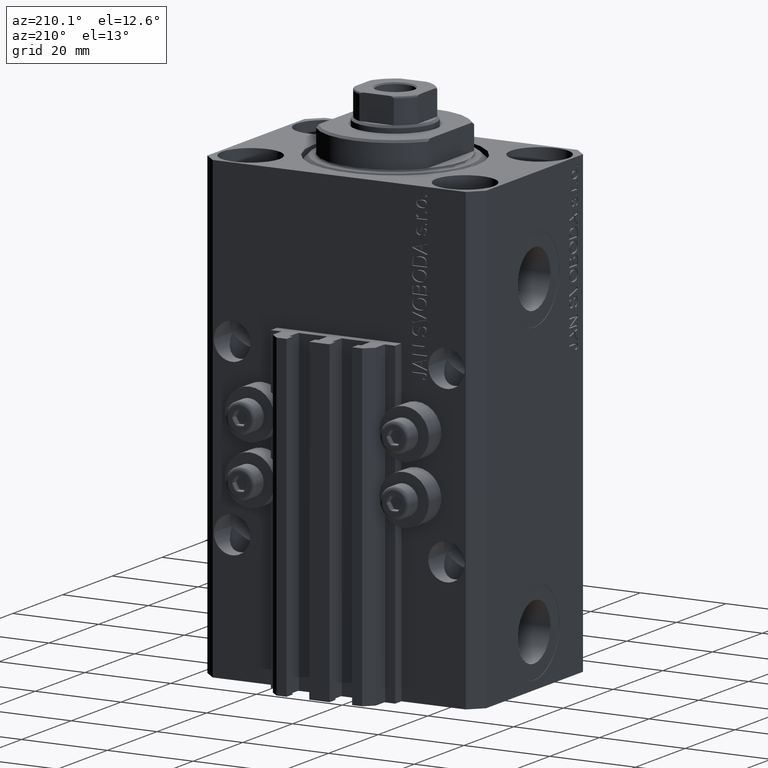
[diagram: clean part render]
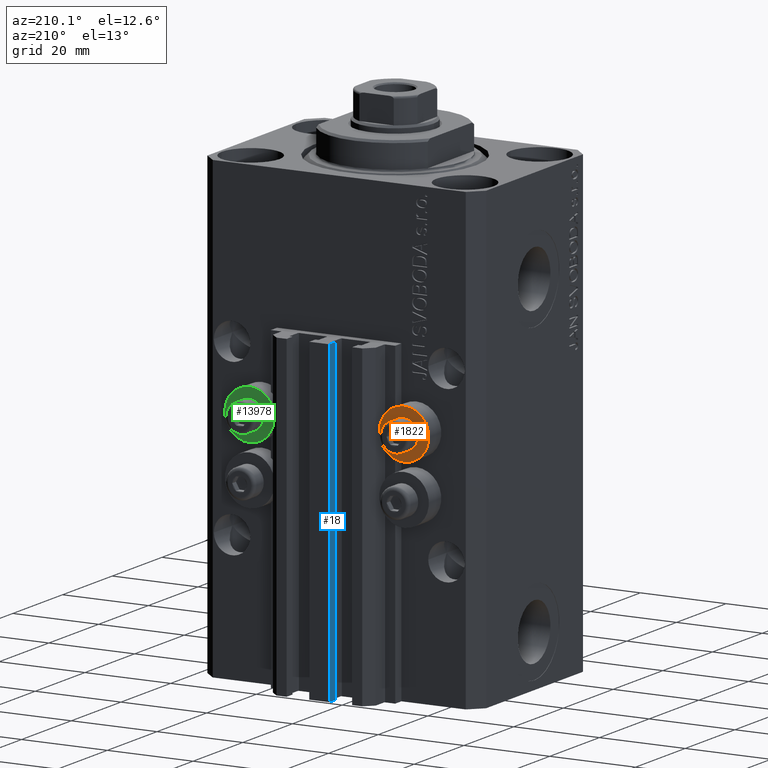
[diagram: same view with three faces highlighted in distinct colors, each labeled with its STEP entity id]
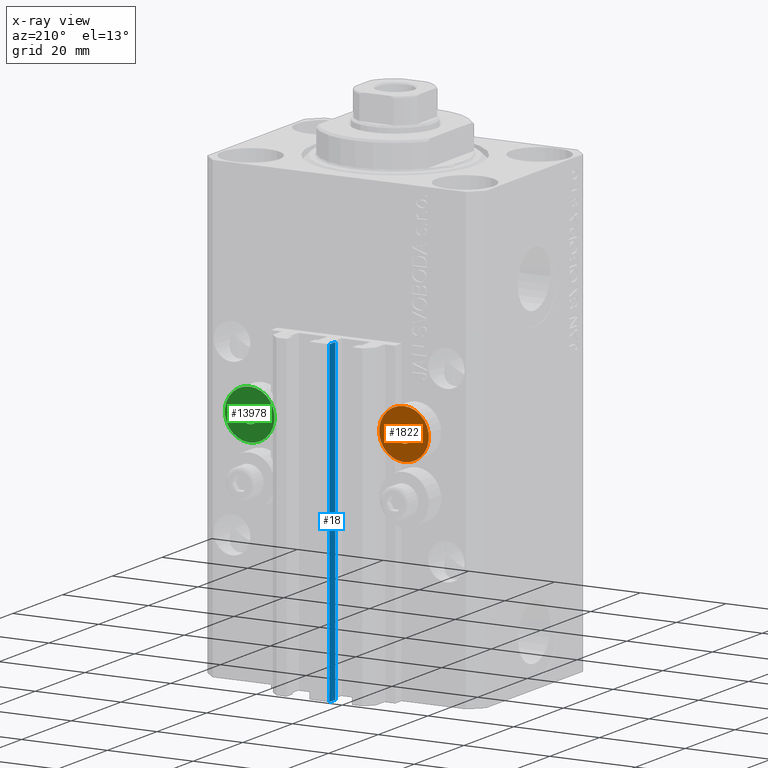
[diagram: x-ray of the same camera — body ghosted, the three highlighted faces saturated]
A machine part, auxiliary view with three faces highlighted in distinct colors.
The next image is the same camera in x-ray (body ghosted, the three faces saturated) — at least one of them is partly hidden behind the body in this view.
Their STEP definitions:

[orange] entity #1822 — the highlighted planar face has unit normal (0, -1, 0).
#555 = DIRECTION ( 'NONE',  ( 0.000000000000000000, 1.000000000000000000, 0.000000000000000000 ) ) ;
#1822 = ADVANCED_FACE ( 'NONE', ( #12685, #37786 ), #19470, .F. ) ;
#2109 = EDGE_CURVE ( 'NONE', #20394, #23537, #43542, .T. ) ;
#3202 = ORIENTED_EDGE ( 'NONE', *, *, #17165, .T. ) ;
#6591 = AXIS2_PLACEMENT_3D ( 'NONE', #19506, #44803, #9119 ) ;
#7117 = EDGE_LOOP ( 'NONE', ( #3202, #26191 ) ) ;
#7789 = CARTESIAN_POINT ( 'NONE',  ( -18.00000000000000355, 27.49999999996051514, -50.39999999999999858 ) ) ;
#8874 = AXIS2_PLACEMENT_3D ( 'NONE', #34180, #15839, #45248 ) ;
#9119 = DIRECTION ( 'NONE',  ( 0.000000000000000000, 0.000000000000000000, 1.000000000000000000 ) ) ;
#9642 = VERTEX_POINT ( 'NONE', #29463 ) ;
#10520 = CARTESIAN_POINT ( 'NONE',  ( -18.00000000000000355, 27.49999999996051514, -52.40000000000000568 ) ) ;
#12087 = DIRECTION ( 'NONE',  ( 0.000000000000000000, 0.000000000000000000, 1.000000000000000000 ) ) ;
#12685 = FACE_BOUND ( 'NONE', #21485, .T. ) ;
#13772 = CIRCLE ( 'NONE', #43017, 2.000000000000001776 ) ;
#15714 = CARTESIAN_POINT ( 'NONE',  ( -18.00000000000000355, 27.49999999996051514, -50.39999999999999858 ) ) ;
#15839 = DIRECTION ( 'NONE',  ( 0.000000000000000000, -1.000000000000000000, 0.000000000000000000 ) ) ;
#17165 = EDGE_CURVE ( 'NONE', #23537, #20394, #45307, .T. ) ;
#17555 = VERTEX_POINT ( 'NONE', #10520 ) ;
#19470 = PLANE ( 'NONE',  #8874 ) ;
#19506 = CARTESIAN_POINT ( 'NONE',  ( -18.00000000000000355, 27.49999999996051514, -50.39999999999999858 ) ) ;
#20394 = VERTEX_POINT ( 'NONE', #42016 ) ;
#20982 = DIRECTION ( 'NONE',  ( -0.000000000000000000, 1.000000000000000000, -0.000000000000000000 ) ) ;
#21485 = EDGE_LOOP ( 'NONE', ( #44103, #21540 ) ) ;
#21540 = ORIENTED_EDGE ( 'NONE', *, *, #45895, .F. ) ;
#23537 = VERTEX_POINT ( 'NONE', #27195 ) ;
#26191 = ORIENTED_EDGE ( 'NONE', *, *, #2109, .T. ) ;
#27195 = CARTESIAN_POINT ( 'NONE',  ( -18.00000000000000355, 27.49999999996051514, -44.60000000000000142 ) ) ;
#29463 = CARTESIAN_POINT ( 'NONE',  ( -18.00000000000000355, 27.49999999996051514, -48.39999999999999858 ) ) ;
#30205 = AXIS2_PLACEMENT_3D ( 'NONE', #15714, #30429, #12087 ) ;
#30429 = DIRECTION ( 'NONE',  ( 0.000000000000000000, 1.000000000000000000, 0.000000000000000000 ) ) ;
#30724 = EDGE_CURVE ( 'NONE', #9642, #17555, #40984, .T. ) ;
#32782 = CARTESIAN_POINT ( 'NONE',  ( -18.00000000000000355, 27.49999999996051514, -50.39999999999999858 ) ) ;
#34180 = CARTESIAN_POINT ( 'NONE',  ( -12.20000000000000284, 27.49999999996051514, -50.39999999999999858 ) ) ;
#34559 = AXIS2_PLACEMENT_3D ( 'NONE', #32782, #20982, #35681 ) ;
#35681 = DIRECTION ( 'NONE',  ( 0.000000000000000000, 0.000000000000000000, 1.000000000000000000 ) ) ;
#37457 = DIRECTION ( 'NONE',  ( 0.000000000000000000, 0.000000000000000000, 1.000000000000000000 ) ) ;
#37786 = FACE_OUTER_BOUND ( 'NONE', #7117, .T. ) ;
#40984 = CIRCLE ( 'NONE', #30205, 2.000000000000001776 ) ;
#42016 = CARTESIAN_POINT ( 'NONE',  ( -18.00000000000000355, 27.49999999996051514, -56.20000000000000284 ) ) ;
#43017 = AXIS2_PLACEMENT_3D ( 'NONE', #7789, #555, #37457 ) ;
#43542 = CIRCLE ( 'NONE', #6591, 5.799999999999999822 ) ;
#44103 = ORIENTED_EDGE ( 'NONE', *, *, #30724, .F. ) ;
#44803 = DIRECTION ( 'NONE',  ( -0.000000000000000000, 1.000000000000000000, -0.000000000000000000 ) ) ;
#45248 = DIRECTION ( 'NONE',  ( 0.000000000000000000, -0.000000000000000000, -1.000000000000000000 ) ) ;
#45307 = CIRCLE ( 'NONE', #34559, 5.799999999999999822 ) ;
#45895 = EDGE_CURVE ( 'NONE', #17555, #9642, #13772, .T. ) ;

[blue] entity #18 — the highlighted planar face has unit normal (-1, 0, 0).
#18 = ADVANCED_FACE ( 'NONE', ( #30057 ), #8813, .T. ) ;
#1091 = CARTESIAN_POINT ( 'NONE',  ( -2.350000000000003197, 30.49999999999949907, -107.0000000000000000 ) ) ;
#3023 = DIRECTION ( 'NONE',  ( 0.000000000000000000, -1.000000000000000000, 0.000000000000000000 ) ) ;
#5397 = LINE ( 'NONE', #17219, #14447 ) ;
#5634 = DIRECTION ( 'NONE',  ( 0.000000000000000000, 0.000000000000000000, 1.000000000000000000 ) ) ;
#6756 = EDGE_LOOP ( 'NONE', ( #37461, #43425, #29010, #27324 ) ) ;
#7563 = LINE ( 'NONE', #14353, #20588 ) ;
#7847 = DIRECTION ( 'NONE',  ( 0.000000000000000000, 0.000000000000000000, 1.000000000000000000 ) ) ;
#8813 = PLANE ( 'NONE',  #33465 ) ;
#11004 = VERTEX_POINT ( 'NONE', #45545 ) ;
#12797 = EDGE_CURVE ( 'NONE', #27629, #11004, #38241, .T. ) ;
#13774 = EDGE_CURVE ( 'NONE', #36236, #21244, #7563, .T. ) ;
#14353 = CARTESIAN_POINT ( 'NONE',  ( -2.350000000000003197, 30.49999999999949907, -33.00000000000000000 ) ) ;
#14447 = VECTOR ( 'NONE', #5634, 1000.000000000000000 ) ;
#14728 = EDGE_CURVE ( 'NONE', #27629, #36236, #5397, .T. ) ;
#17219 = CARTESIAN_POINT ( 'NONE',  ( -2.350000000000003197, 30.49999999999949907, -107.0000000000000000 ) ) ;
#18592 = EDGE_CURVE ( 'NONE', #11004, #21244, #36226, .T. ) ;
#19016 = CARTESIAN_POINT ( 'NONE',  ( -2.350000000000003197, 30.49999999999949907, -33.00000000000000000 ) ) ;
#20588 = VECTOR ( 'NONE', #3023, 1000.000000000000000 ) ;
#21035 = CARTESIAN_POINT ( 'NONE',  ( -2.350000000000003197, 30.49999999999949907, -107.0000000000000000 ) ) ;
#21244 = VERTEX_POINT ( 'NONE', #36013 ) ;
#25171 = VECTOR ( 'NONE', #44970, 1000.000000000000000 ) ;
#26199 = DIRECTION ( 'NONE',  ( -1.000000000000000000, 0.000000000000000000, 0.000000000000000000 ) ) ;
#27324 = ORIENTED_EDGE ( 'NONE', *, *, #18592, .T. ) ;
#27629 = VERTEX_POINT ( 'NONE', #21035 ) ;
#28037 = CARTESIAN_POINT ( 'NONE',  ( -2.350000000000003197, 28.09999999999950049, -107.0000000000000000 ) ) ;
#29010 = ORIENTED_EDGE ( 'NONE', *, *, #12797, .T. ) ;
#30057 = FACE_OUTER_BOUND ( 'NONE', #6756, .T. ) ;
#30288 = CARTESIAN_POINT ( 'NONE',  ( -2.350000000000003197, 30.49999999999949907, -107.0000000000000000 ) ) ;
#33465 = AXIS2_PLACEMENT_3D ( 'NONE', #1091, #26199, #7847 ) ;
#36013 = CARTESIAN_POINT ( 'NONE',  ( -2.350000000000003197, 28.09999999999950049, -33.00000000000000000 ) ) ;
#36226 = LINE ( 'NONE', #28037, #43792 ) ;
#36236 = VERTEX_POINT ( 'NONE', #19016 ) ;
#37461 = ORIENTED_EDGE ( 'NONE', *, *, #13774, .F. ) ;
#38241 = LINE ( 'NONE', #30288, #25171 ) ;
#42719 = DIRECTION ( 'NONE',  ( 0.000000000000000000, 0.000000000000000000, 1.000000000000000000 ) ) ;
#43425 = ORIENTED_EDGE ( 'NONE', *, *, #14728, .F. ) ;
#43792 = VECTOR ( 'NONE', #42719, 1000.000000000000000 ) ;
#44970 = DIRECTION ( 'NONE',  ( 0.000000000000000000, -1.000000000000000000, 0.000000000000000000 ) ) ;
#45545 = CARTESIAN_POINT ( 'NONE',  ( -2.350000000000003197, 28.09999999999950049, -107.0000000000000000 ) ) ;

[green] entity #13978 — the highlighted planar face has unit normal (0, -1, 0).
#702 = AXIS2_PLACEMENT_3D ( 'NONE', #36170, #25547, #14906 ) ;
#1079 = DIRECTION ( 'NONE',  ( -0.000000000000000000, -1.000000000000000000, -0.000000000000000000 ) ) ;
#5008 = CIRCLE ( 'NONE', #15031, 2.000000000000001776 ) ;
#5221 = AXIS2_PLACEMENT_3D ( 'NONE', #46284, #6019, #34734 ) ;
#5393 = DIRECTION ( 'NONE',  ( 0.000000000000000000, -1.000000000000000000, -0.000000000000000000 ) ) ;
#6019 = DIRECTION ( 'NONE',  ( -0.000000000000000000, -1.000000000000000000, -0.000000000000000000 ) ) ;
#9083 = AXIS2_PLACEMENT_3D ( 'NONE', #20255, #45786, #46503 ) ;
#9249 = CARTESIAN_POINT ( 'NONE',  ( 12.20000000000000284, 27.49999999996051514, -50.39999999999999858 ) ) ;
#10557 = AXIS2_PLACEMENT_3D ( 'NONE', #9249, #5393, #38906 ) ;
#10638 = CIRCLE ( 'NONE', #9083, 5.799999999999999822 ) ;
#10712 = CARTESIAN_POINT ( 'NONE',  ( 18.00000000000000355, 27.49999999996051514, -52.40000000000000568 ) ) ;
#13978 = ADVANCED_FACE ( 'NONE', ( #24200, #46606 ), #35778, .F. ) ;
#14221 = EDGE_LOOP ( 'NONE', ( #34621, #29068 ) ) ;
#14883 = VERTEX_POINT ( 'NONE', #26574 ) ;
#14906 = DIRECTION ( 'NONE',  ( 0.000000000000000000, 0.000000000000000000, 1.000000000000000000 ) ) ;
#15031 = AXIS2_PLACEMENT_3D ( 'NONE', #16057, #1079, #15572 ) ;
#15572 = DIRECTION ( 'NONE',  ( 0.000000000000000000, 0.000000000000000000, 1.000000000000000000 ) ) ;
#16057 = CARTESIAN_POINT ( 'NONE',  ( 18.00000000000000355, 27.49999999996051514, -50.39999999999999858 ) ) ;
#17876 = EDGE_LOOP ( 'NONE', ( #40360, #36737 ) ) ;
#20255 = CARTESIAN_POINT ( 'NONE',  ( 18.00000000000000355, 27.49999999996051514, -50.39999999999999858 ) ) ;
#23824 = CIRCLE ( 'NONE', #702, 2.000000000000001776 ) ;
#24200 = FACE_BOUND ( 'NONE', #17876, .T. ) ;
#25345 = VERTEX_POINT ( 'NONE', #40532 ) ;
#25547 = DIRECTION ( 'NONE',  ( -0.000000000000000000, -1.000000000000000000, -0.000000000000000000 ) ) ;
#26018 = CIRCLE ( 'NONE', #5221, 5.799999999999999822 ) ;
#26574 = CARTESIAN_POINT ( 'NONE',  ( 18.00000000000000355, 27.49999999996051514, -56.20000000000000284 ) ) ;
#29068 = ORIENTED_EDGE ( 'NONE', *, *, #41102, .F. ) ;
#34362 = EDGE_CURVE ( 'NONE', #37637, #25345, #5008, .T. ) ;
#34621 = ORIENTED_EDGE ( 'NONE', *, *, #40515, .F. ) ;
#34734 = DIRECTION ( 'NONE',  ( 0.000000000000000000, 0.000000000000000000, 1.000000000000000000 ) ) ;
#35778 = PLANE ( 'NONE',  #10557 ) ;
#36170 = CARTESIAN_POINT ( 'NONE',  ( 18.00000000000000355, 27.49999999996051514, -50.39999999999999858 ) ) ;
#36737 = ORIENTED_EDGE ( 'NONE', *, *, #34362, .T. ) ;
#37637 = VERTEX_POINT ( 'NONE', #10712 ) ;
#38906 = DIRECTION ( 'NONE',  ( -0.000000000000000000, 0.000000000000000000, -1.000000000000000000 ) ) ;
#40360 = ORIENTED_EDGE ( 'NONE', *, *, #44357, .T. ) ;
#40470 = CARTESIAN_POINT ( 'NONE',  ( 18.00000000000000355, 27.49999999996051514, -44.60000000000000142 ) ) ;
#40515 = EDGE_CURVE ( 'NONE', #45182, #14883, #10638, .T. ) ;
#40532 = CARTESIAN_POINT ( 'NONE',  ( 18.00000000000000355, 27.49999999996051514, -48.39999999999999858 ) ) ;
#41102 = EDGE_CURVE ( 'NONE', #14883, #45182, #26018, .T. ) ;
#44357 = EDGE_CURVE ( 'NONE', #25345, #37637, #23824, .T. ) ;
#45182 = VERTEX_POINT ( 'NONE', #40470 ) ;
#45786 = DIRECTION ( 'NONE',  ( -0.000000000000000000, -1.000000000000000000, -0.000000000000000000 ) ) ;
#46284 = CARTESIAN_POINT ( 'NONE',  ( 18.00000000000000355, 27.49999999996051514, -50.39999999999999858 ) ) ;
#46503 = DIRECTION ( 'NONE',  ( 0.000000000000000000, 0.000000000000000000, 1.000000000000000000 ) ) ;
#46606 = FACE_OUTER_BOUND ( 'NONE', #14221, .T. ) ;